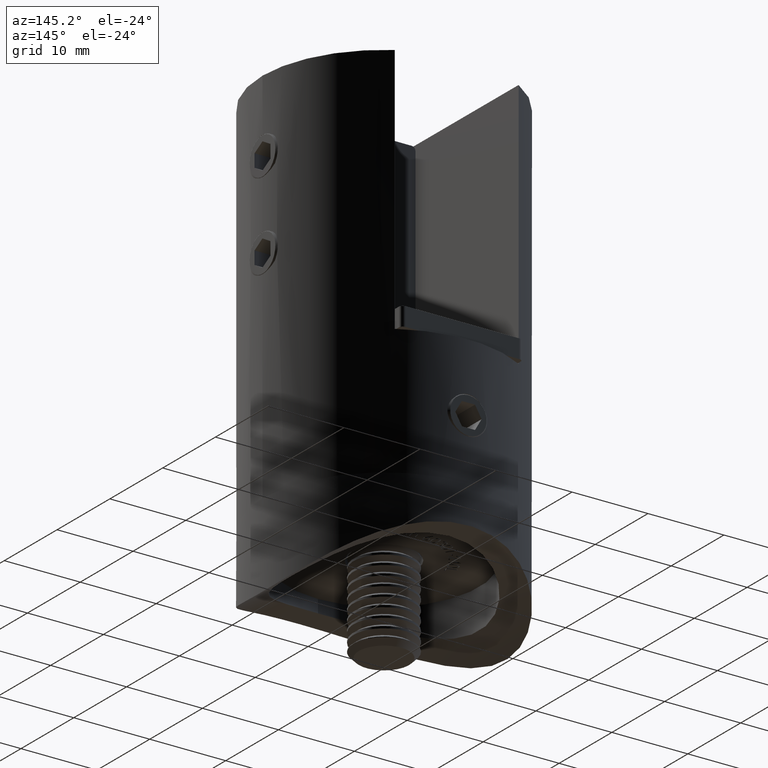
[diagram: clean part render]
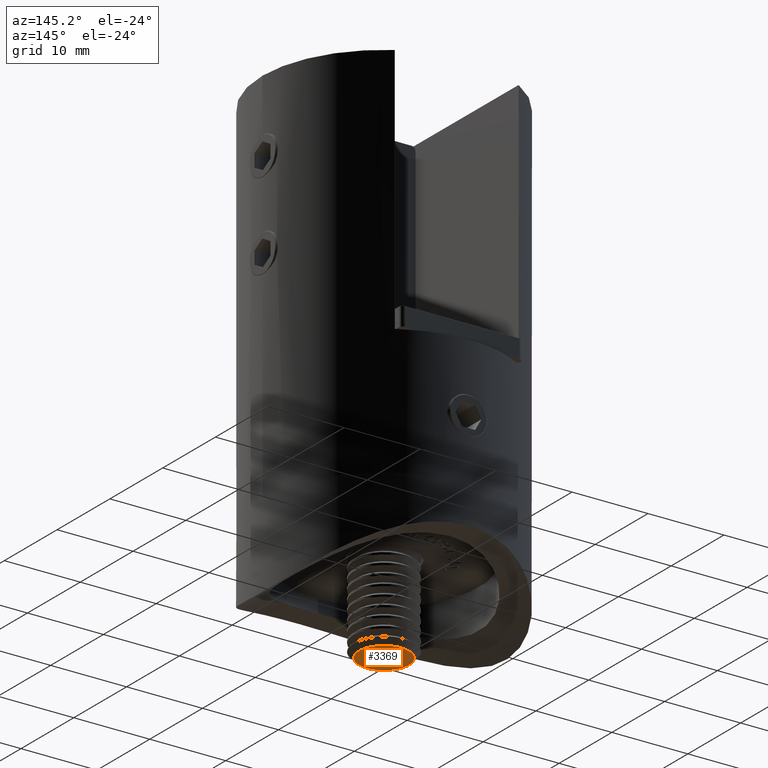
[diagram: same view with one face highlighted and labeled with its STEP entity id]
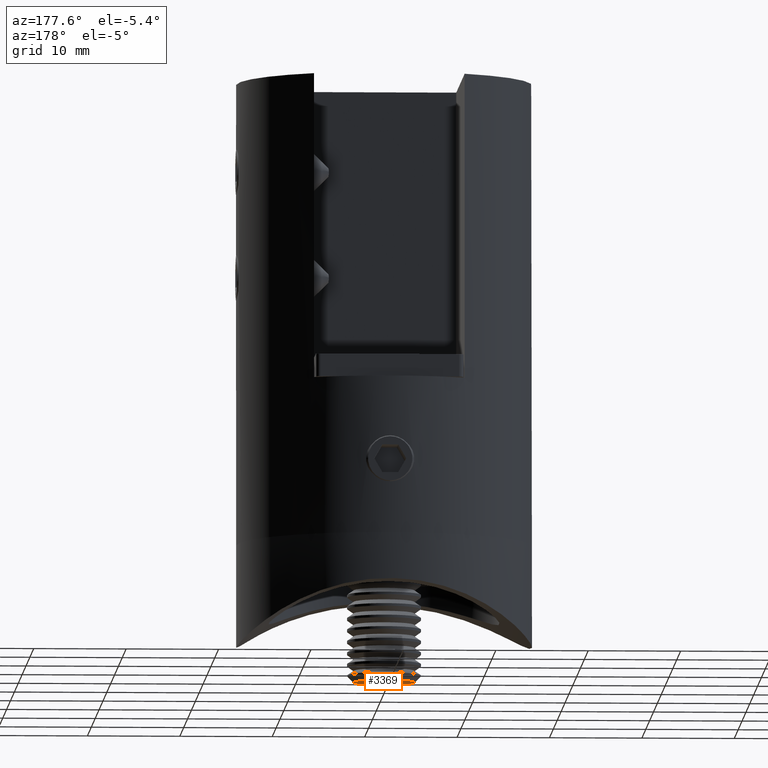
[diagram: same view with one face highlighted and labeled with its STEP entity id]
A machine part, auxiliary view. The second image highlights one B-rep face of the part: STEP entity #3369.
A second angle (auxiliary view) of the same face is appended — the face is thin or edge-on in the first view.
In plain terms, the highlighted planar face has unit normal (0, 0, -1).
Its self-contained STEP definition (entity closure, byte-faithful):
#65 = EDGE_CURVE ( 'NONE', #16533, #16533, #10455, .T. ) ;
#361 = DIRECTION ( 'NONE',  ( 0.000000000000000000, -3.609557344504208489E-35, -1.000000000000000000 ) ) ;
#3369 = ADVANCED_FACE ( 'NONE', ( #17541 ), #16761, .T. ) ;
#4440 = ORIENTED_EDGE ( 'NONE', *, *, #65, .F. ) ;
#5006 = DIRECTION ( 'NONE',  ( -1.000000000000000000, 0.000000000000000000, 0.000000000000000000 ) ) ;
#8034 = CARTESIAN_POINT ( 'NONE',  ( 25.00000000000000000, 0.000000000000000000, 0.000000000000000000 ) ) ;
#9940 = AXIS2_PLACEMENT_3D ( 'NONE', #18288, #10685, #361 ) ;
#10391 = EDGE_LOOP ( 'NONE', ( #4440 ) ) ;
#10455 = CIRCLE ( 'NONE', #15487, 3.309499999999999886 ) ;
#10685 = DIRECTION ( 'NONE',  ( 1.000000000000000000, 0.000000000000000000, 0.000000000000000000 ) ) ;
#15487 = AXIS2_PLACEMENT_3D ( 'NONE', #8034, #5006, #17452 ) ;
#16533 = VERTEX_POINT ( 'NONE', #16968 ) ;
#16761 = PLANE ( 'NONE',  #9940 ) ;
#16968 = CARTESIAN_POINT ( 'NONE',  ( 25.00000000000000000, 1.194583003163667683E-34, 3.309499999999999886 ) ) ;
#17452 = DIRECTION ( 'NONE',  ( 0.000000000000000000, 3.609557344504208489E-35, 1.000000000000000000 ) ) ;
#17541 = FACE_OUTER_BOUND ( 'NONE', #10391, .T. ) ;
#18288 = CARTESIAN_POINT ( 'NONE',  ( 25.00000000000000000, 3.309500000000002551, -1.110459794314770263E-16 ) ) ;